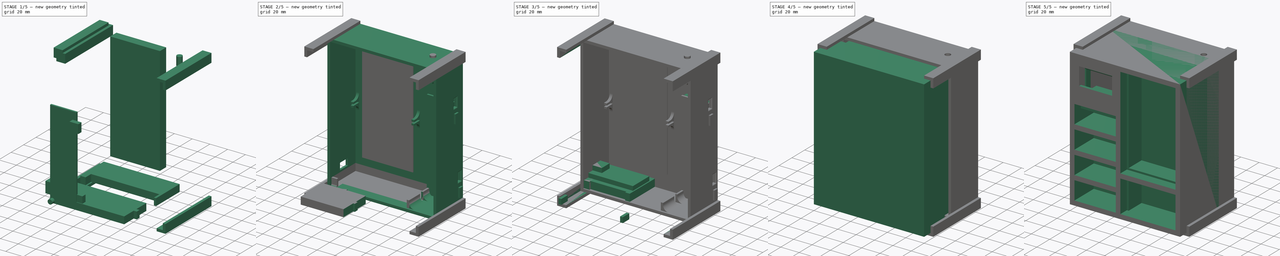
[diagram: build sequence overview — one tinted view per stage of 5, left to right]
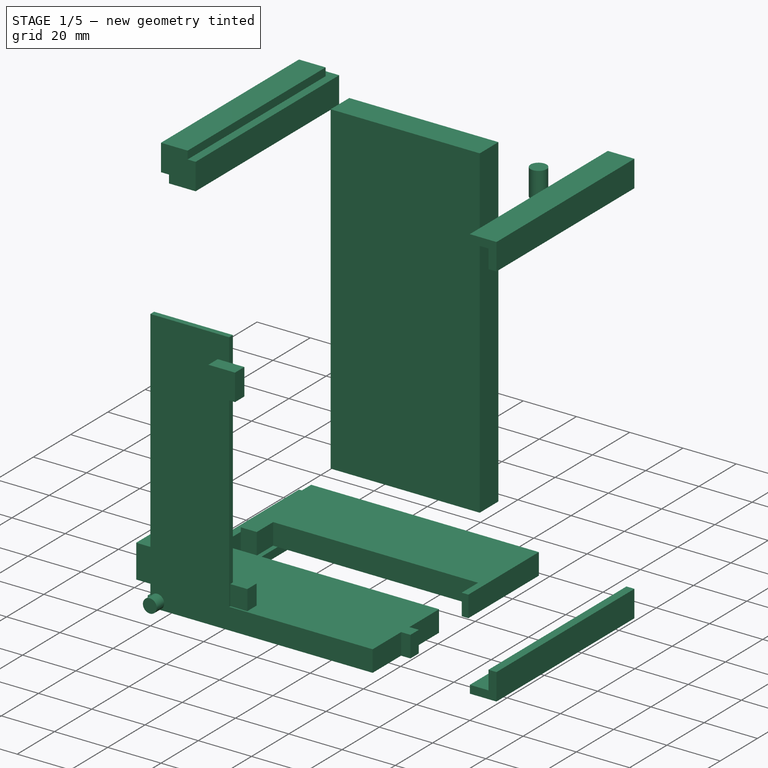
[diagram: stage 1 of 5 — iso view after this stage's code; geometry added in this stage tinted green]
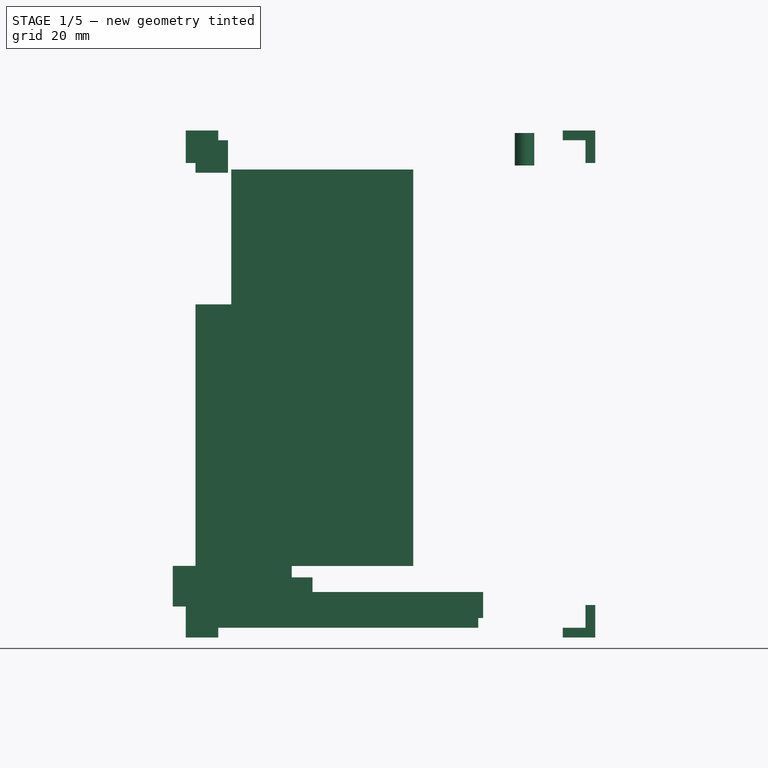
[diagram: stage 1 of 5 — front view after this stage's code; geometry added in this stage tinted green]
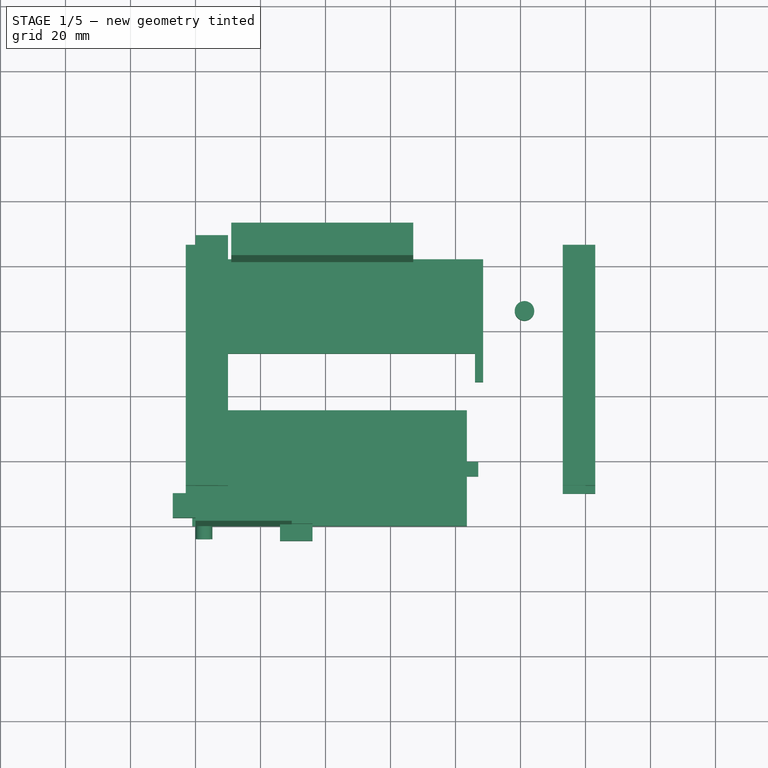
[diagram: stage 1 of 5 — top view after this stage's code; geometry added in this stage tinted green]
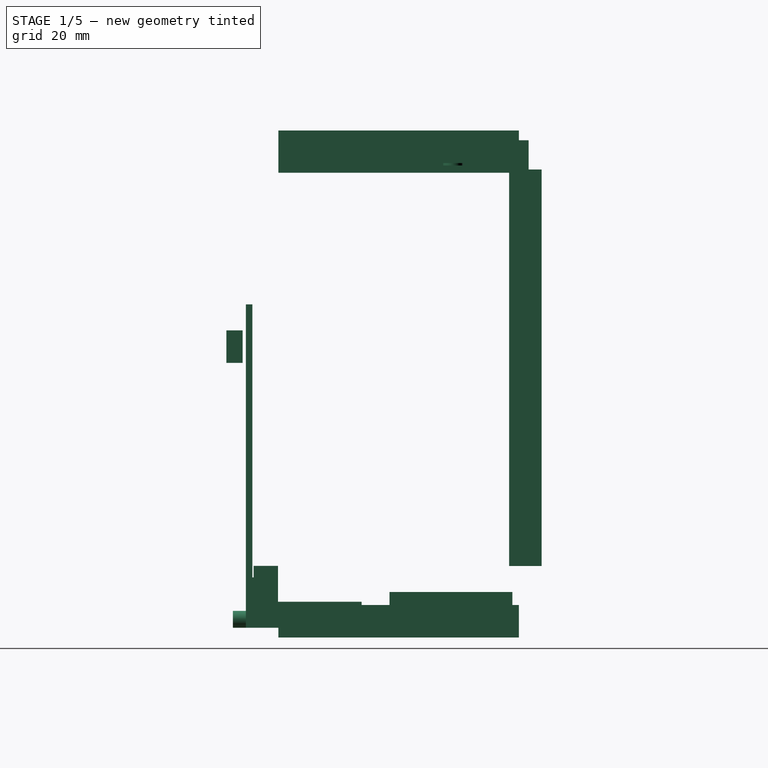
[diagram: stage 1 of 5 — right view after this stage's code; geometry added in this stage tinted green]
FCSTD DOCUMENT  (FreeCAD 0.19R24291 (Git))
Label: weather_closet
License: All rights reserved
LicenseURL: http://en.wikipedia.org/wiki/All_rights_reserved
objects: Part::Box×60, Part::Cut×30, Part::MultiFuse×16, Part::FeaturePython×12, Part::Cylinder×6, Part::Fillet×4, Sketcher::SketchObject×2, Part::Extrusion×2, Part::Chamfer×1
note: 125 computed .brp shape members not serialized (recipe doc carries the construction recipe); baked Part::Feature solids carry a one-line shape summary decoded from their .brp

FEATURE [Part::Box] Box043  label="Cubo024"
  AttacherType = Attacher::AttachEngine3D
  Height = 10
  Length = 10
  Placement = pos=(-3,10,143) rot=(0,0,1;0rad)
  Width = 74
FEATURE [Part::Box] Box045  label="Cubo026"
  AttacherType = Attacher::AttachEngine3D
  Height = 10
  Length = 10
  Placement = pos=(-3,10,143) rot=(0,0,1;0rad)
  Width = 74
FEATURE [Part::Box] Box046  label="micro_usb001"
  AttacherType = Attacher::AttachEngine3D
  Height = 10
  Length = 10
  Placement = pos=(26,0.6,5.5) rot=(0,0,1;0rad)
  Width = 5
FEATURE [Part::Box] Box047  label="Cubo027"
  AttacherType = Attacher::AttachEngine3D
  Height = 5.8
  Length = 3
  Placement = pos=(0,8,0) rot=(0,0,1;0rad)
  Width = 10
FEATURE [Part::Cylinder] Cylinder003  label="Cilindro003"
  Angle = 360
  AttacherType = Attacher::AttachEngine3D
  Height = 4
  Placement = pos=(2.6,0,2.6) rot=(1,0,0;1.5708rad)
  Radius = 2.6
FEATURE [Part::Box] Box048  label="protoboard002"
  AttacherType = Attacher::AttachEngine3D
  Height = 8
  Length = 83.5
  Width = 35.6
FEATURE [Part::Box] Box049  label="Cubo028"
  AttacherType = Attacher::AttachEngine3D
  Height = 10
  Length = 77
  Placement = pos=(9,43,3) rot=(0,0,1;0rad)
  Width = 10
FEATURE [Part::Box] Box050  label="salida_proto002"
  AttacherType = Attacher::AttachEngine3D
  Height = 8
  Length = 4
  Placement = pos=(83,15.25,0) rot=(0,0,1;0rad)
  Width = 4.5
FEATURE [Part::Box] Box051  label="base_pilas001"
  AttacherType = Attacher::AttachEngine3D
  Height = 99.5
  Length = 29.6
  Width = 2
FEATURE [Part::Cylinder] Cylinder004  label="Cilindro004"
  Angle = 360
  AttacherType = Attacher::AttachEngine3D
  Height = 4
  Placement = pos=(2.6,0,2.6) rot=(1,0,0;1.5708rad)
  Radius = 1.2
FEATURE [Part::Box] Box052  label="Cubo029"
  AttacherType = Attacher::AttachEngine3D
  Height = 12.5
  Length = 17
  Placement = pos=(-7,2.4,6.55) rot=(0,0,1;0rad)
  Width = 7.5
FEATURE [Part::Box] Box053  label="on_off001"
  AttacherType = Attacher::AttachEngine3D
  Height = 10
  Length = 10
  Placement = pos=(26,-6,81.5) rot=(0,0,1;0rad)
  Width = 5
FEATURE [Part::Box] Box054  label="Cubo030"
  AttacherType = Attacher::AttachEngine3D
  Height = 10
  Length = 10
  Placement = pos=(0,10,140) rot=(0,0,1;0rad)
  Width = 77
FEATURE [Part::Cylinder] Cylinder005  label="Entrada_switch_on_off"
  Angle = 360
  AttacherType = Attacher::AttachEngine3D
  Height = 10
  Placement = pos=(101.22,63.68,142.21) rot=(0,0,1;0rad)
  Radius = 3
FEATURE [Part::Box] Box055  label="protoboard003"
  AttacherType = Attacher::AttachEngine3D
  Height = 8
  Length = 85.5
  Placement = pos=(3,44.2,3) rot=(0,0,1;0rad)
  Width = 37.8
FEATURE [Part::Cut] Cut030  label="baseProto001"
  Base = -> Box055
  Tool = -> Box049
FEATURE [Part::Box] Box056  label="leds002"
  AttacherType = Attacher::AttachEngine3D
  Height = 1.7
  Length = 72
  Placement = pos=(-1,0,2) rot=(0,0,1;0rad)
  Width = 18
FEATURE [Part::Box] Box057  label="Cubo031"
  AttacherType = Attacher::AttachEngine3D
  Height = 10
  Length = 10
  Placement = pos=(0,10,140) rot=(0,0,1;0rad)
  Width = 77
FEATURE [Part::Cut] Cut029
  Base = -> Box045
  Placement = pos=(-30,-2e-15,150) rot=(0,1,0;1.5708rad)
  Tool = -> Box057
FEATURE [Part::Box] Box058  label="Cubo032"
  AttacherType = Attacher::AttachEngine3D
  Height = 10
  Length = 10
  Placement = pos=(0,10,140) rot=(0,0,1;0rad)
  Width = 77
FEATURE [Part::Box] Box059  label="Cubo033"
  AttacherType = Attacher::AttachEngine3D
  Height = 10
  Length = 10
  Placement = pos=(-3,10,143) rot=(0,0,1;0rad)
  Width = 74
FEATURE [Part::Box] Box060  label="tapa_trasera"
  AttacherType = Attacher::AttachEngine3D
  Height = 122
  Length = 56
  Placement = pos=(11,81,19) rot=(0,0,1;0rad)
  Width = 10
FEATURE [Part::Box] Box061  label="Cubo034"
  AttacherType = Attacher::AttachEngine3D
  Height = 10
  Length = 10
  Placement = pos=(-3,10,143) rot=(0,0,1;0rad)
  Width = 74
FEATURE [Part::Cut] Cut028
  Base = -> Box061
  Placement = pos=(150,0,3.3e-14) rot=(0,-1,0;1.5708rad)
  Tool = -> Box058
FEATURE [Part::Box] Box062  label="Cubo035"
  AttacherType = Attacher::AttachEngine3D
  Height = 10
  Length = 10
  Placement = pos=(0,10,140) rot=(0,0,1;0rad)
  Width = 77
FEATURE [Part::Cut] Cut027
  Base = -> Box059
  Placement = pos=(120,0,150) rot=(0,1,0;3.14159rad)
  Tool = -> Box062
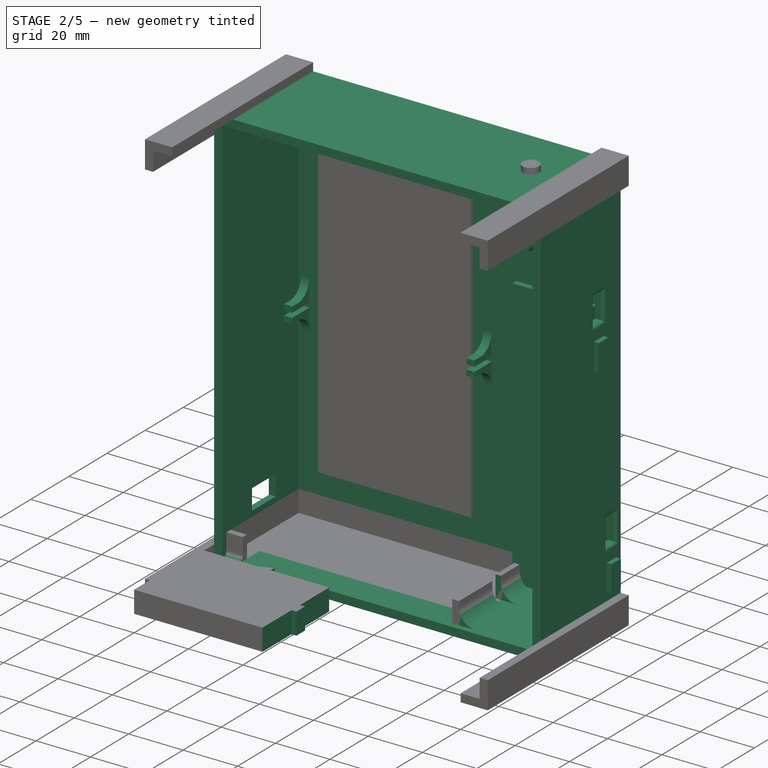
[diagram: stage 2 of 5 — iso view after this stage's code; geometry added in this stage tinted green]
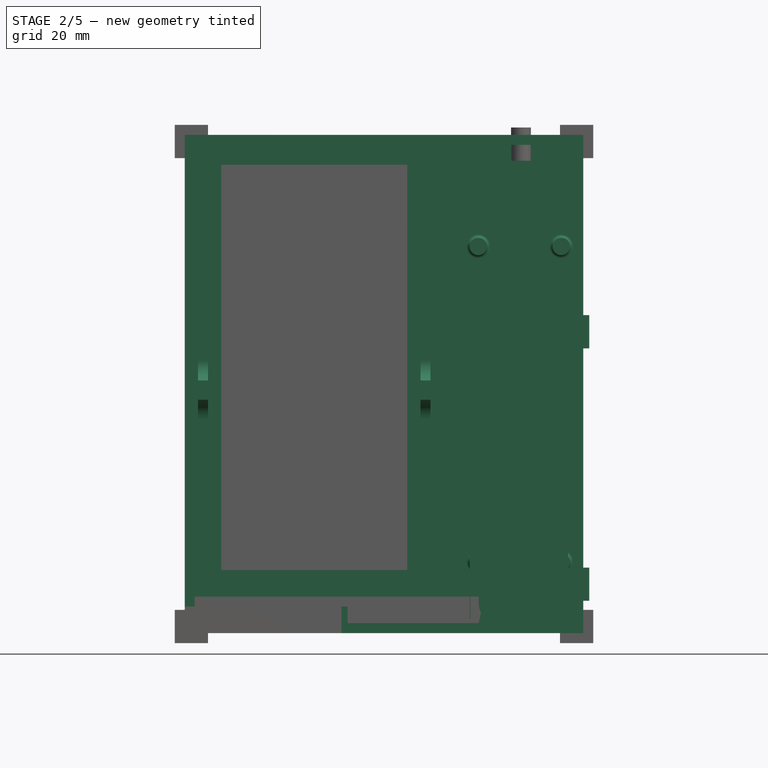
[diagram: stage 2 of 5 — front view after this stage's code; geometry added in this stage tinted green]
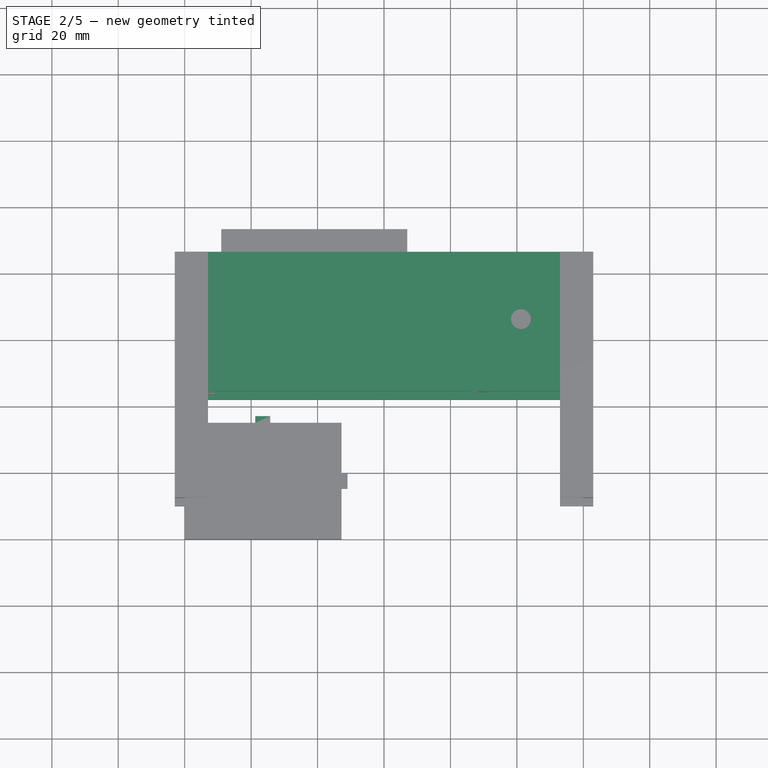
[diagram: stage 2 of 5 — top view after this stage's code; geometry added in this stage tinted green]
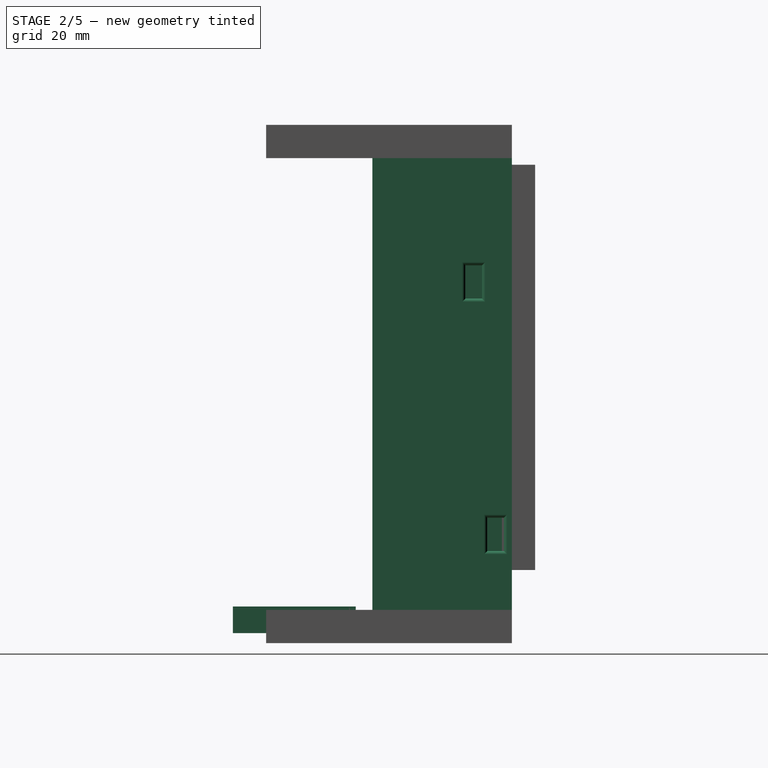
[diagram: stage 2 of 5 — right view after this stage's code; geometry added in this stage tinted green]
FEATURE [Part::Box] Box021  label="protoboard"
  AttacherType = Attacher::AttachEngine3D
  Height = 8
  Length = 47.2
  Width = 35
FEATURE [Part::Box] Box022  label="salida_proto"
  AttacherType = Attacher::AttachEngine3D
  Height = 8
  Length = 2
  Placement = pos=(47,15.25,0) rot=(0,0,1;0rad)
  Width = 4.5
FEATURE [Part::Box] Box023  label="salida_proto001"
  AttacherType = Attacher::AttachEngine3D
  Height = 8
  Length = 4.5
  Placement = pos=(21.25,35,0) rot=(0,0,1;0rad)
  Width = 2
FEATURE [Part::Box] Box027  label="base_pilas"
  AttacherType = Attacher::AttachEngine3D
  Height = 99.5
  Length = 29.6
  Width = 2
FEATURE [Part::Box] Box028  label="micro_usb"
  AttacherType = Attacher::AttachEngine3D
  Height = 10
  Length = 10
  Placement = pos=(26,0.6,5.5) rot=(0,0,1;0rad)
  Width = 5
FEATURE [Part::Box] Box029  label="on_off"
  AttacherType = Attacher::AttachEngine3D
  Height = 10
  Length = 10
  Placement = pos=(26,-6,81.5) rot=(0,0,1;0rad)
  Width = 5
FEATURE [Part::MultiFuse] Fusion008  label="portapilas"
  Placement = pos=(85.8,76,4.23) rot=(0,0,1;0rad)
  Shapes = -> [Box028,Box029,Box027]
FEATURE [Part::Box] Box040  label="Cubo021"
  AttacherType = Attacher::AttachEngine3D
  Height = 122
  Length = 56
  Placement = pos=(11,81,19) rot=(0,0,1;0rad)
  Width = 10
FEATURE [Part::Cylinder] Cylinder002  label="Cilindro002"
  Angle = 360
  AttacherType = Attacher::AttachEngine3D
  Height = 10
  Placement = pos=(101.22,63.68,142.21) rot=(0,0,1;0rad)
  Radius = 3
FEATURE [Part::Box] Box041  label="Cubo022"
  AttacherType = Attacher::AttachEngine3D
  Height = 150
  Length = 120
  Placement = pos=(0,42,0) rot=(0,0,1;0rad)
  Width = 42
FEATURE [Part::Box] Box042  label="Cubo023"
  AttacherType = Attacher::AttachEngine3D
  Height = 144
  Length = 114
  Placement = pos=(3,32,3) rot=(0,0,1;0rad)
  Width = 50
FEATURE [Part::Cut] Cut024
  Base = -> Box041
  Tool = -> Box042
FEATURE [Part::Box] Box044  label="Cubo025"
  AttacherType = Attacher::AttachEngine3D
  Height = 25.5
  Length = 48.5
  Placement = pos=(0,0.4,0) rot=(0,0,1;0rad)
  Width = 4.6
FEATURE [Part::FeaturePython] Array008  label="soporte_leds001"  # Draft array (typed FeaturePython)
  AlwaysSyncPlacement = false
  Angle = 360
  ArrayType = 0
  Axis = (0,0,1)
  Base = -> Box047
  Center = (0,0,0)
  Count = 2
  ExpandArray = false
  Fuse = false
  IntervalAxis = (0,0,0)
  IntervalX = (67,0,0)
  IntervalY = (0,0,0)
  IntervalZ = (0,0,0)
  LinkCopyOnChange = -1
  NumberCircles = 3
  NumberPolar = 5
  NumberX = 2
  NumberY = 1
  NumberZ = 1
  PlacementList = 2 placements: [(0,8,0),(67,8,0)]
  RadialDistance = 50
  ScaleList = (2) [(1,1,1),(1,1,1)]
  Symmetry = 1
  TangentialDistance = 25
FEATURE [Part::Cut] Cut025
  Base = -> Cylinder003
  Placement = pos=(31.1998,82,-20.1714) rot=(0,0,1;0rad)
  Tool = -> Cylinder004
FEATURE [Part::FeaturePython] Array007  label="tornillos_portapilas"  # Draft array (typed FeaturePython)
  AlwaysSyncPlacement = false
  Angle = 360
  ArrayType = 0
  Axis = (0,0,1)
  Base = -> Cut025
  Center = (0,0,0)
  Count = 4
  ExpandArray = false
  Fuse = false
  IntervalAxis = (0,0,0)
  IntervalX = (25,0,0)
  IntervalY = (0,100,0)
  IntervalZ = (0,0,95)
  LinkCopyOnChange = -1
  NumberCircles = 3
  NumberPolar = 5
  NumberX = 2
  NumberY = 1
  NumberZ = 2
  Placement = pos=(54.6,0,39) rot=(0,0,1;0rad)
  PlacementList = 4 placements: [(31.1998,82,-20.1714),(31.1998,82,74.8286),(56.1998,82,-20.1714),(56.1998,82,74.8286)]
  RadialDistance = 50
  ScaleList = (4) [(1,1,1),(1,1,1),(1,1,1),(1,1,1)]
  Symmetry = 1
  TangentialDistance = 25
FEATURE [Part::MultiFuse] Fusion016  label="nodemcu001"
  Placement = pos=(0,30.25,7.6) rot=(1,0,0;1.5708rad)
  Shapes = -> [Box044,Box052]
FEATURE [Part::MultiFuse] Fusion014  label="proto_placa"
  Placement = pos=(3,46.4,3) rot=(0,0,1;0rad)
  Shapes = -> [Box048,Box050,Fusion016]
FEATURE [Part::MultiFuse] Fusion017  label="portapilas001"
  Placement = pos=(85.8,76,19.23) rot=(0,0,1;0rad)
  Shapes = -> [Box046,Box053,Box051]
FEATURE [Part::Cut] Cut026
  Base = -> Box043
  Tool = -> Box054
FEATURE [Part::Cut] Cut023  label="soporte_placa_leds001"
  Base = -> Array008
  Placement = pos=(4,65,70.25) rot=(0,0,1;0rad)
  Tool = -> Box056
FEATURE [Part::MultiFuse] Fusion013
  Shapes = -> [Fusion014,Fusion017,Cylinder005,Box060]
FEATURE [Part::MultiFuse] Fusion015  label="soportes_frontis001"
  Shapes = -> [Cut026,Cut029,Cut028,Cut027]
FEATURE [Part::MultiFuse] Fusion012
  Shapes = -> [Fusion015,Cut024,Cut023,Cut030,Array007]
FEATURE [Part::Cut] Cut022
  Base = -> Fusion012
  Tool = -> Fusion013
FEATURE [Part::Fillet] Fillet003  label="Closet_bottom_generic"
  Base = -> Cut022
  Edges = 23 edges: [Edge39 r=1,Edge40 r=1,Edge41 r=1,Edge42 r=1,Edge70 r=1,Edge71 r=1,Edge72 r=1,Edge73 r=1,Edge74 r=1,Edge75 r=1,Edge76 r=1,Edge77 r=1,Edge132 r=2,Edge137 r=6,Edge141 r=6,Edge186 r=6,Edge187 r=6,Edge194 r=6,Edge195 r=6,Edge199 r=1,Edge200 r=1,Edge201 r=1,Edge202 r=1]
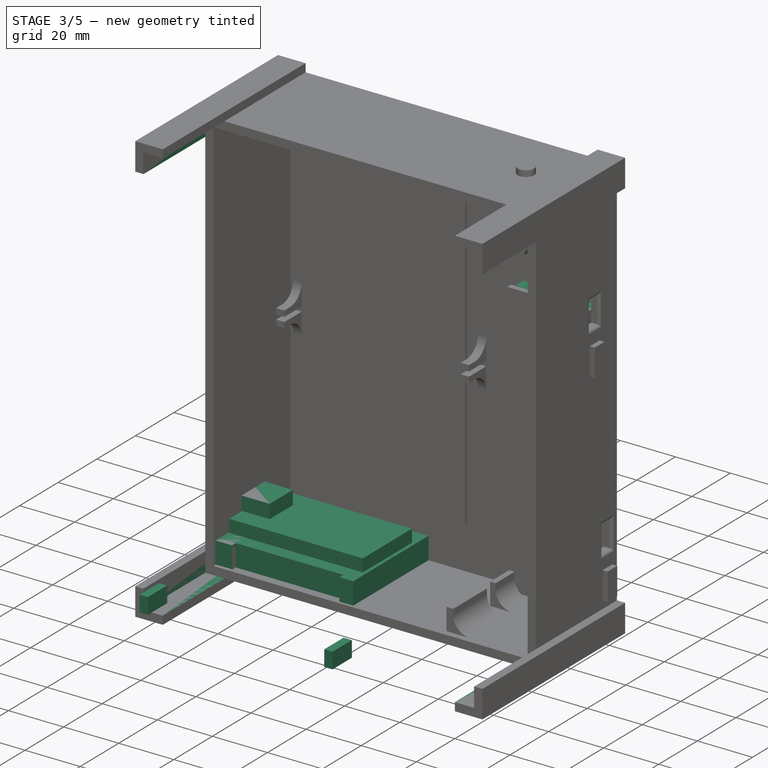
[diagram: stage 3 of 5 — iso view after this stage's code; geometry added in this stage tinted green]
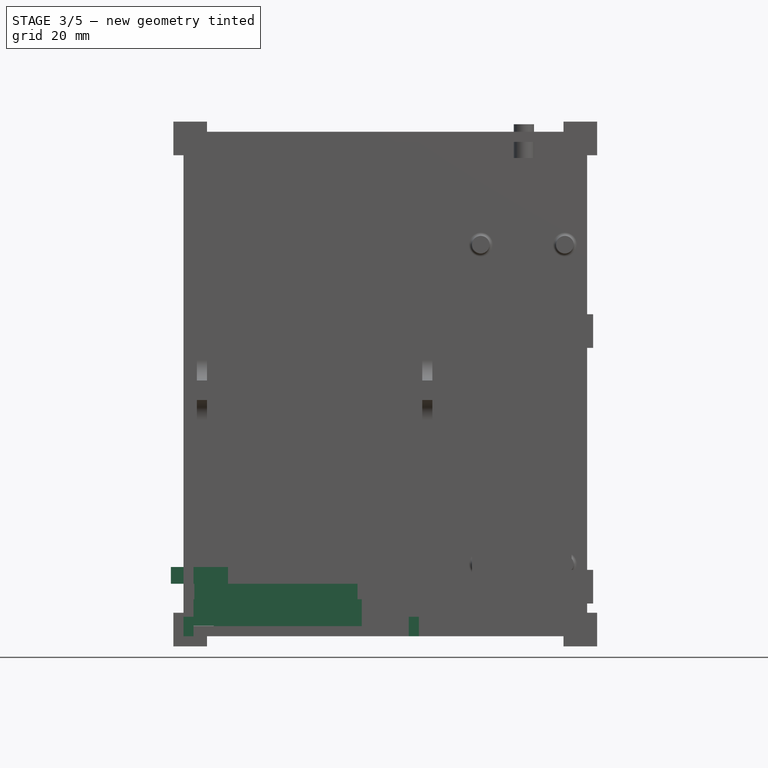
[diagram: stage 3 of 5 — front view after this stage's code; geometry added in this stage tinted green]
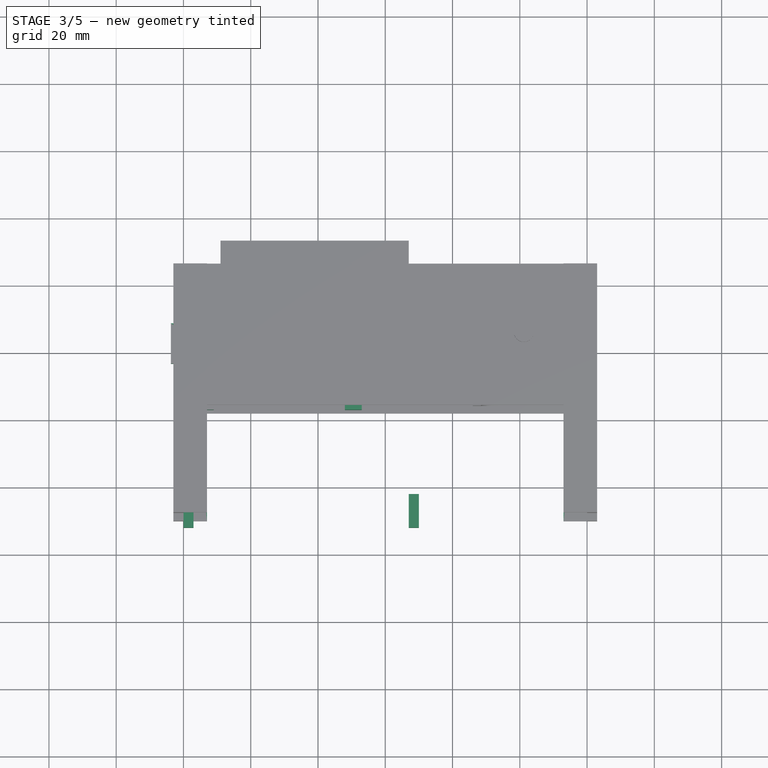
[diagram: stage 3 of 5 — top view after this stage's code; geometry added in this stage tinted green]
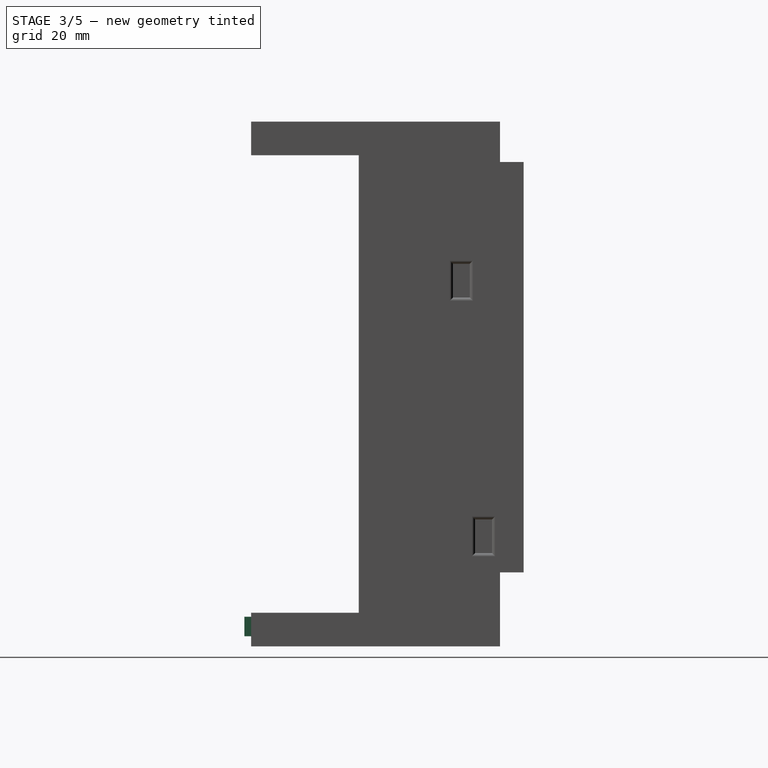
[diagram: stage 3 of 5 — right view after this stage's code; geometry added in this stage tinted green]
FEATURE [Part::Box] Box017  label="Cubo007"
  AttacherType = Attacher::AttachEngine3D
  Height = 10
  Length = 10
  Placement = pos=(-3,10,143) rot=(0,0,1;0rad)
  Width = 74
FEATURE [Part::Box] Box018  label="Cubo008"
  AttacherType = Attacher::AttachEngine3D
  Height = 25.5
  Length = 48.5
  Placement = pos=(0,0.4,0) rot=(0,0,1;0rad)
  Width = 4.6
FEATURE [Part::Box] Box020  label="Cubo010"
  AttacherType = Attacher::AttachEngine3D
  Height = 12
  Length = 17
  Placement = pos=(-7,5,6.75) rot=(0,0,1;0rad)
  Width = 5
FEATURE [Part::MultiFuse] Fusion005  label="nodemcu"
  Placement = pos=(-0.75,30.25,7.6) rot=(1,0,0;1.5708rad)
  Shapes = -> [Box018,Box020]
FEATURE [Part::MultiFuse] Fusion006  label="proto_nodemcu"
  Placement = pos=(4,45,3) rot=(0,0,1;0rad)
  Shapes = -> [Fusion005,Box021,Box023,Box022]
FEATURE [Part::Box] Box024  label="protoboard001"
  AttacherType = Attacher::AttachEngine3D
  Height = 8
  Length = 50
  Placement = pos=(3,43,3) rot=(0,0,1;0rad)
  Width = 39
FEATURE [Part::Box] Box025  label="Cubo011"
  AttacherType = Attacher::AttachEngine3D
  Height = 5.8
  Length = 3
  Placement = pos=(0,8,0) rot=(0,0,1;0rad)
  Width = 10
FEATURE [Part::FeaturePython] Array005  label="soporte_leds"  # Draft array (typed FeaturePython)
  AlwaysSyncPlacement = false
  Angle = 360
  ArrayType = 0
  Axis = (0,0,1)
  Base = -> Box025
  Center = (0,0,0)
  Count = 2
  ExpandArray = false
  Fuse = false
  IntervalAxis = (0,0,0)
  IntervalX = (67,0,0)
  IntervalY = (0,0,0)
  IntervalZ = (0,0,0)
  LinkCopyOnChange = -1
  NumberCircles = 3
  NumberPolar = 5
  NumberX = 2
  NumberY = 1
  NumberZ = 1
  PlacementList = 2 placements: [(0,8,0),(67,8,0)]
  RadialDistance = 50
  ScaleList = (2) [(1,1,1),(1,1,1)]
  Symmetry = 1
  TangentialDistance = 25
FEATURE [Part::Cylinder] Cylinder  label="Cilindro"
  Angle = 360
  AttacherType = Attacher::AttachEngine3D
  Height = 4
  Placement = pos=(2.6,0,2.6) rot=(1,0,0;1.5708rad)
  Radius = 2.6
FEATURE [Part::Cylinder] Cylinder001  label="Cilindro001"
  Angle = 360
  AttacherType = Attacher::AttachEngine3D
  Height = 4
  Placement = pos=(2.6,0,2.6) rot=(1,0,0;1.5708rad)
  Radius = 1.2
FEATURE [Part::Cut] Cut013
  Base = -> Cylinder
  Placement = pos=(31.1998,82,-20.1714) rot=(0,0,1;0rad)
  Tool = -> Cylinder001
FEATURE [Part::FeaturePython] Array006  # Draft array (typed FeaturePython)
  AlwaysSyncPlacement = false
  Angle = 360
  ArrayType = 0
  Axis = (0,0,1)
  Base = -> Cut013
  Center = (0,0,0)
  Count = 4
  ExpandArray = false
  Fuse = false
  IntervalAxis = (0,0,0)
  IntervalX = (25,0,0)
  IntervalY = (0,100,0)
  IntervalZ = (0,0,95)
  LinkCopyOnChange = -1
  NumberCircles = 3
  NumberPolar = 5
  NumberX = 2
  NumberY = 1
  NumberZ = 2
  Placement = pos=(54.6,0,24) rot=(0,0,1;0rad)
  PlacementList = 4 placements: [(31.1998,82,-20.1714),(31.1998,82,74.8286),(56.1998,82,-20.1714),(56.1998,82,74.8286)]
  RadialDistance = 50
  ScaleList = (4) [(1,1,1),(1,1,1),(1,1,1),(1,1,1)]
  Symmetry = 1
  TangentialDistance = 25
FEATURE [Part::Box] Box032  label="Cubo013"
  AttacherType = Attacher::AttachEngine3D
  Height = 10
  Length = 39
  Placement = pos=(9,43,3) rot=(0,0,1;0rad)
  Width = 10
FEATURE [Part::Cut] Cut014  label="baseProto"
  Base = -> Box024
  Tool = -> Box032
FEATURE [Part::Box] Box033  label="Cubo014"
  AttacherType = Attacher::AttachEngine3D
  Height = 10
  Length = 10
  Placement = pos=(0,10,140) rot=(0,0,1;0rad)
  Width = 77
FEATURE [Part::Cut] Cut015
  Base = -> Box017
  Tool = -> Box033
FEATURE [Part::Box] Box034  label="Cubo015"
  AttacherType = Attacher::AttachEngine3D
  Height = 10
  Length = 10
  Placement = pos=(-3,10,143) rot=(0,0,1;0rad)
  Width = 74
FEATURE [Part::Box] Box035  label="Cubo016"
  AttacherType = Attacher::AttachEngine3D
  Height = 10
  Length = 10
  Placement = pos=(0,10,140) rot=(0,0,1;0rad)
  Width = 77
FEATURE [Part::Cut] Cut016
  Base = -> Box034
  Placement = pos=(-30,-2e-15,150) rot=(0,1,0;1.5708rad)
  Tool = -> Box035
FEATURE [Part::Box] Box036  label="Cubo017"
  AttacherType = Attacher::AttachEngine3D
  Height = 10
  Length = 10
  Placement = pos=(-3,10,143) rot=(0,0,1;0rad)
  Width = 74
FEATURE [Part::Box] Box037  label="Cubo018"
  AttacherType = Attacher::AttachEngine3D
  Height = 10
  Length = 10
  Placement = pos=(0,10,140) rot=(0,0,1;0rad)
  Width = 77
FEATURE [Part::Cut] Cut017
  Base = -> Box036
  Placement = pos=(150,0,3.3e-14) rot=(0,-1,0;1.5708rad)
  Tool = -> Box037
FEATURE [Part::Box] Box038  label="Cubo019"
  AttacherType = Attacher::AttachEngine3D
  Height = 10
  Length = 10
  Placement = pos=(-3,10,143) rot=(0,0,1;0rad)
  Width = 74
FEATURE [Part::Box] Box039  label="Cubo020"
  AttacherType = Attacher::AttachEngine3D
  Height = 10
  Length = 10
  Placement = pos=(0,10,140) rot=(0,0,1;0rad)
  Width = 77
FEATURE [Part::Cut] Cut018
  Base = -> Box038
  Placement = pos=(120,0,150) rot=(0,1,0;3.14159rad)
  Tool = -> Box039
FEATURE [Part::MultiFuse] Fusion009  label="soportes_frontis"
  Shapes = -> [Cut015,Cut016,Cut017,Cut018]
FEATURE [Part::MultiFuse] Fusion011
  Shapes = -> [Fusion008,Fusion006]
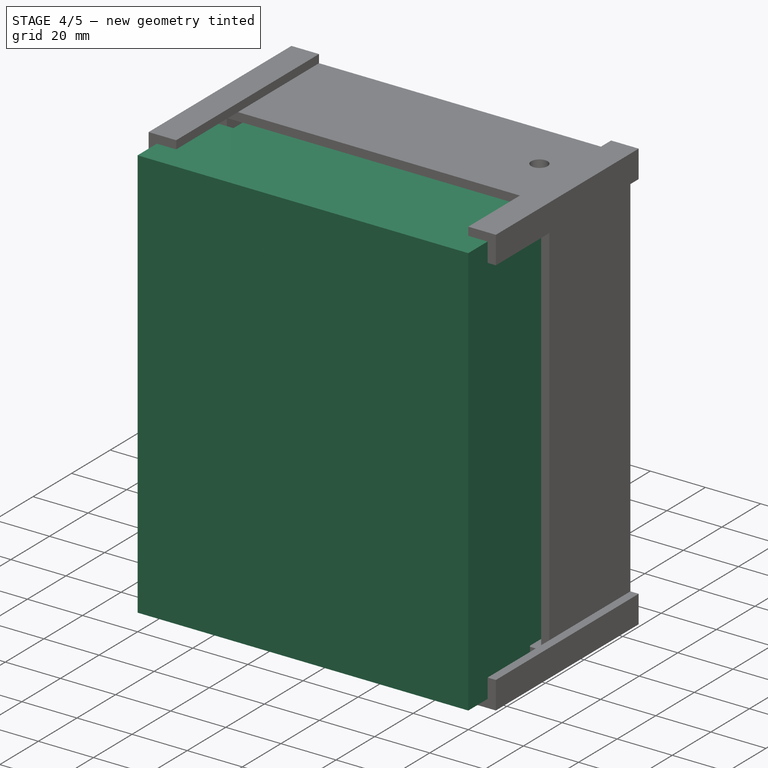
[diagram: stage 4 of 5 — iso view after this stage's code; geometry added in this stage tinted green]
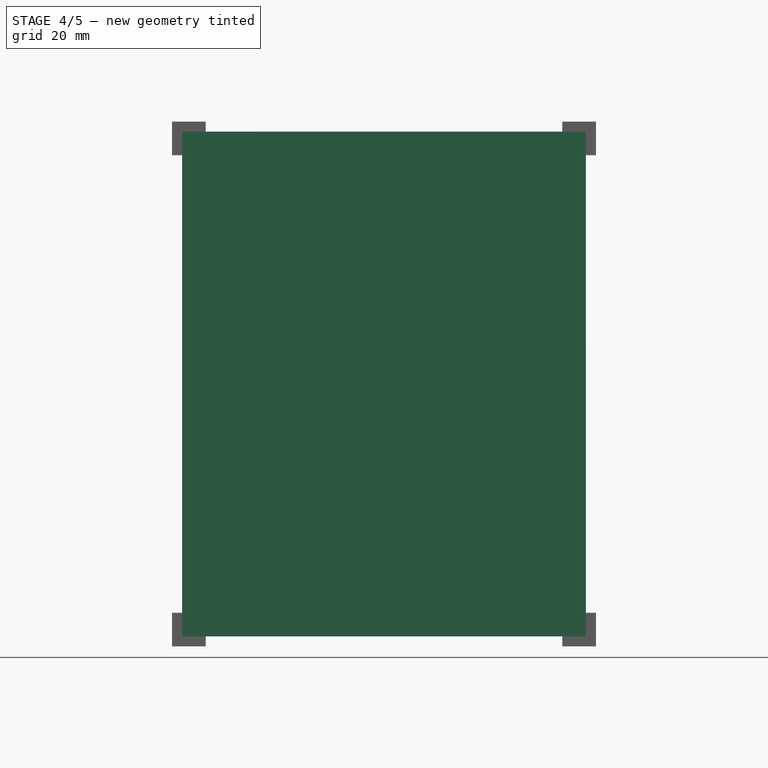
[diagram: stage 4 of 5 — front view after this stage's code; geometry added in this stage tinted green]
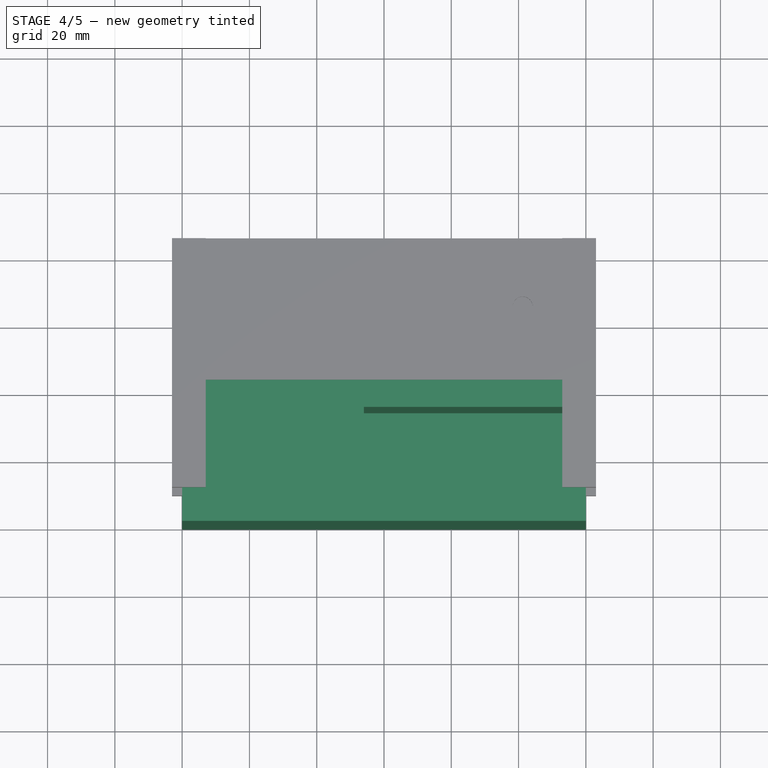
[diagram: stage 4 of 5 — top view after this stage's code; geometry added in this stage tinted green]
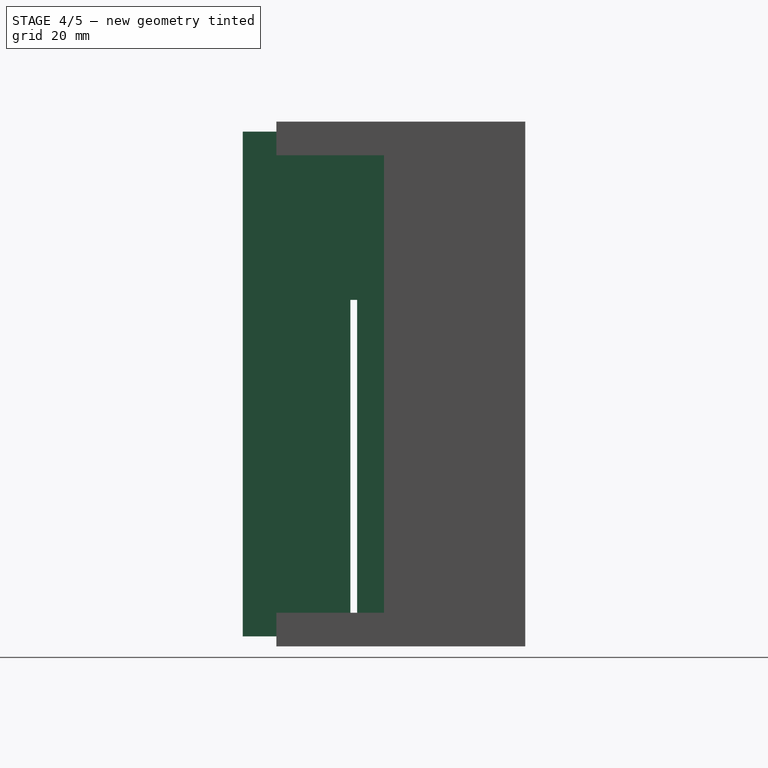
[diagram: stage 4 of 5 — right view after this stage's code; geometry added in this stage tinted green]
FEATURE [Part::Box] Box  label="display_base"
  AttacherType = Attacher::AttachEngine3D
  Height = 3
  Length = 36
  Width = 34
FEATURE [Part::Box] Box001  label="display"
  AttacherType = Attacher::AttachEngine3D
  Height = 3
  Length = 36
  Placement = pos=(1.8e-15,7,3) rot=(0,0,1;0rad)
  Width = 23.5
FEATURE [Part::Box] Box002  label="display_wires"
  AttacherType = Attacher::AttachEngine3D
  Height = 3
  Length = 16
  Placement = pos=(10,0,3) rot=(0,0,1;0rad)
  Width = 34
FEATURE [Part::Box] Box003  label="active_display"
  AttacherType = Attacher::AttachEngine3D
  Height = 2
  Length = 36
  Placement = pos=(1.8e-15,8,6) rot=(0,0,1;0rad)
  Width = 18.5
FEATURE [Part::MultiFuse] Fusion  label="oled_sh1106"
  Placement = pos=(10,8,105) rot=(1,0,0;1.5708rad)
  Shapes = -> [Box,Box001,Box002,Box003]
FEATURE [Part::Box] Box004  label="closet_base"
  AttacherType = Attacher::AttachEngine3D
  Height = 150
  Length = 120
  Width = 32
FEATURE [Part::Box] Box005  label="Cubo"
  AttacherType = Attacher::AttachEngine3D
  Height = 139
  Length = 110
  Placement = pos=(5,34,5) rot=(0,0,1;0rad)
  Width = 26
FEATURE [Part::Box] Box006  label="Cubo001"
  AttacherType = Attacher::AttachEngine3D
  Height = 44
  Length = 49
  Placement = pos=(5,8,100) rot=(0,0,1;0rad)
  Width = 51
FEATURE [Part::FeaturePython] Clone  label="led_head"  # WARN: FeaturePython — macro-defined, semantics opaque (R4)
  Placement = pos=(15,0,21) rot=(1,0,0;3.14159rad)
  Scale = (1,1,1)
FEATURE [Part::FeaturePython] Array  label="leds_repisa"  # Draft array (typed FeaturePython)
  AlwaysSyncPlacement = false
  Angle = 360
  ArrayType = 0
  Axis = (0,0,1)
  Base = -> Clone
  Center = (0,0,0)
  Count = 8
  ExpandArray = false
  Fuse = false
  IntervalAxis = (0,0,0)
  IntervalX = (27,0,0)
  IntervalY = (0,0,0)
  IntervalZ = (0,0,23)
  LinkCopyOnChange = -1
  NumberCircles = 3
  NumberPolar = 5
  NumberX = 2
  NumberY = 1
  NumberZ = 4
  Placement = pos=(0,32,-1) rot=(0,0,1;0rad)
  PlacementList = 8 placements: [(15,0,21),(15,0,44),(15,0,67),(15,0,90),(42,0,21),(42,0,44),(42,0,67),(42,0,90)]
  RadialDistance = 50
  ScaleList = (8) [(1,1,1),(1,1,1),(1,1,1),(1,1,1),(1,1,1),(1,1,1),(1,1,1),(1,1,1)]
  Symmetry = 1
  TangentialDistance = 25
FEATURE [Part::FeaturePython] Clone001  label="led_head001"  # WARN: FeaturePython — macro-defined, semantics opaque (R4)
  Placement = pos=(65,0,35) rot=(1,0,0;3.14159rad)
  Scale = (1,1,1)
FEATURE [Part::FeaturePython] Array001  label="leds_chaquetas"  # Draft array (typed FeaturePython)
  AlwaysSyncPlacement = false
  Angle = 360
  ArrayType = 0
  Axis = (0,0,1)
  Base = -> Clone001
  Center = (0,0,0)
  Count = 6
  ExpandArray = false
  Fuse = false
  IntervalAxis = (0,0,0)
  IntervalX = (20,0,0)
  IntervalY = (0,0,0)
  IntervalZ = (0,0,100)
  LinkCopyOnChange = -1
  NumberCircles = 3
  NumberPolar = 5
  NumberX = 3
  NumberY = 1
  NumberZ = 2
  Placement = pos=(0,32,5) rot=(0,0,1;0rad)
  PlacementList = 6 placements: [(65,0,35),(65,0,135),(85,0,35),(85,0,135),(105,0,35),(105,0,135)]
  RadialDistance = 50
  ScaleList = (6) [(1,1,1),(1,1,1),(1,1,1),(1,1,1),(1,1,1),(1,1,1)]
  Symmetry = 1
  TangentialDistance = 25
FEATURE [Part::MultiFuse] Fusion001
  Shapes = -> [Array,Array001,Fusion]
FEATURE [Part::Box] Box015  label="Cubo005"
  AttacherType = Attacher::AttachEngine3D
  Height = 150
  Length = 120
  Placement = pos=(0,42,0) rot=(0,0,1;0rad)
  Width = 42
FEATURE [Part::Box] Box016  label="Cubo006"
  AttacherType = Attacher::AttachEngine3D
  Height = 144
  Length = 114
  Placement = pos=(3,32,3) rot=(0,0,1;0rad)
  Width = 50
FEATURE [Part::Cut] Cut010
  Base = -> Box015
  Tool = -> Box016
FEATURE [Part::Box] Box026  label="leds"
  AttacherType = Attacher::AttachEngine3D
  Height = 1.7
  Length = 72
  Placement = pos=(-1,0,2) rot=(0,0,1;0rad)
  Width = 18
FEATURE [Part::Cut] Cut012  label="soporte_placa_leds"
  Base = -> Array005
  Placement = pos=(4,65,70.25) rot=(0,0,1;0rad)
  Tool = -> Box026
FEATURE [Part::Box] Box030  label="leds001"
  AttacherType = Attacher::AttachEngine3D
  Height = 1.7
  Length = 72
  Placement = pos=(7,52,70.55) rot=(0,0,1;0rad)
  Width = 30
FEATURE [Part::MultiFuse] Fusion010
  Shapes = -> [Cut010,Fusion009,Cut014,Cut012,Array006]
FEATURE [Part::Cut] Cut019
  Base = -> Fusion010
  Tool = -> Fusion011
FEATURE [Part::Cut] Cut020
  Base = -> Cut019
  Tool = -> Box040
FEATURE [Part::Cut] Cut021
  Base = -> Cut020
  Tool = -> Cylinder002
FEATURE [Part::Fillet] Fillet001
  Base = -> Cut021
  Edges = 4 edges r=7: [Edge157,Edge158,Edge169,Edge172]
FEATURE [Part::Chamfer] Chamfer
  Base = -> Fillet001
  Edges = 2 edges r=5: [Edge57,Edge59]
FEATURE [Part::Fillet] Fillet002  label="closet_bottom_ESP8266"
  Base = -> Chamfer
  Edges = 12 edges r=1.5: [Edge206,Edge209,Edge211,Edge212,Edge214,Edge216,Edge218,Edge220,Edge231,Edge233,Edge235,Edge236]
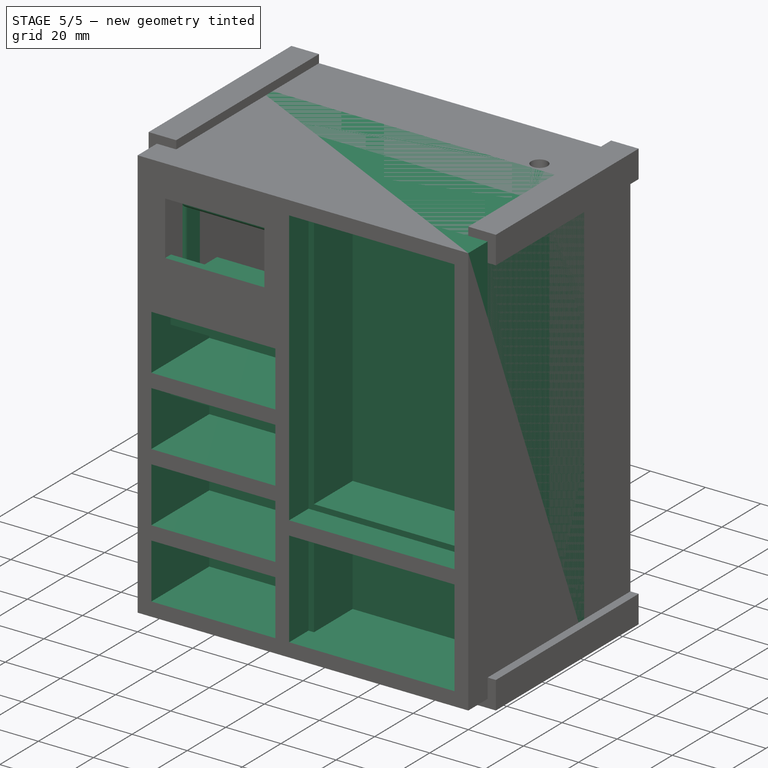
[diagram: stage 5 of 5 — iso view after this stage's code; geometry added in this stage tinted green]
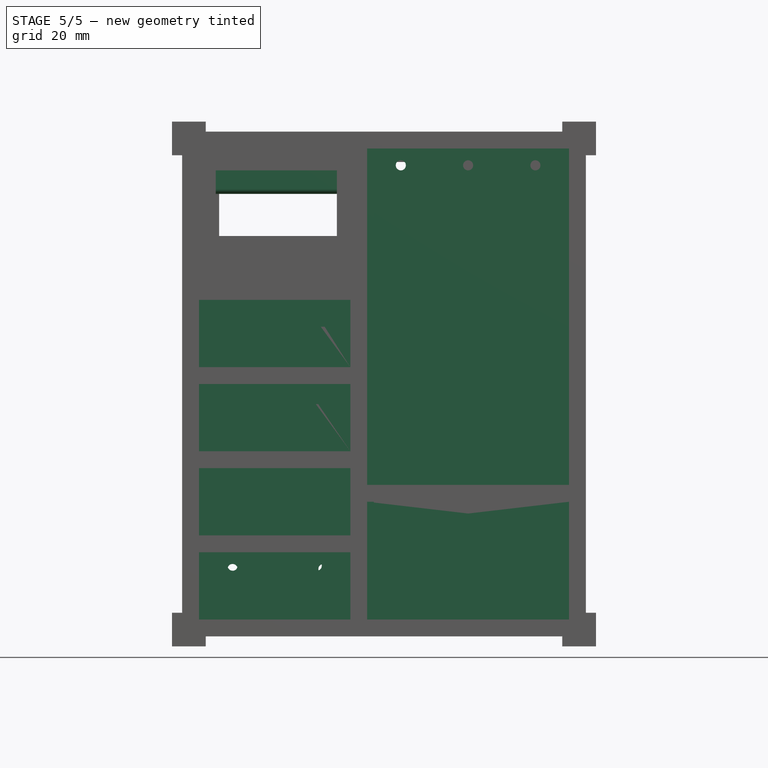
[diagram: stage 5 of 5 — front view after this stage's code; geometry added in this stage tinted green]
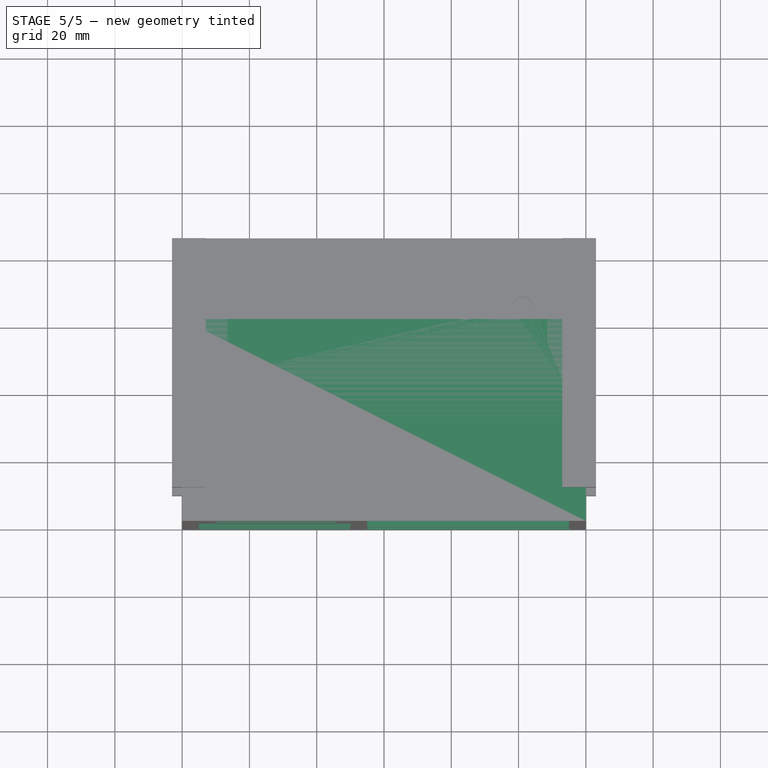
[diagram: stage 5 of 5 — top view after this stage's code; geometry added in this stage tinted green]
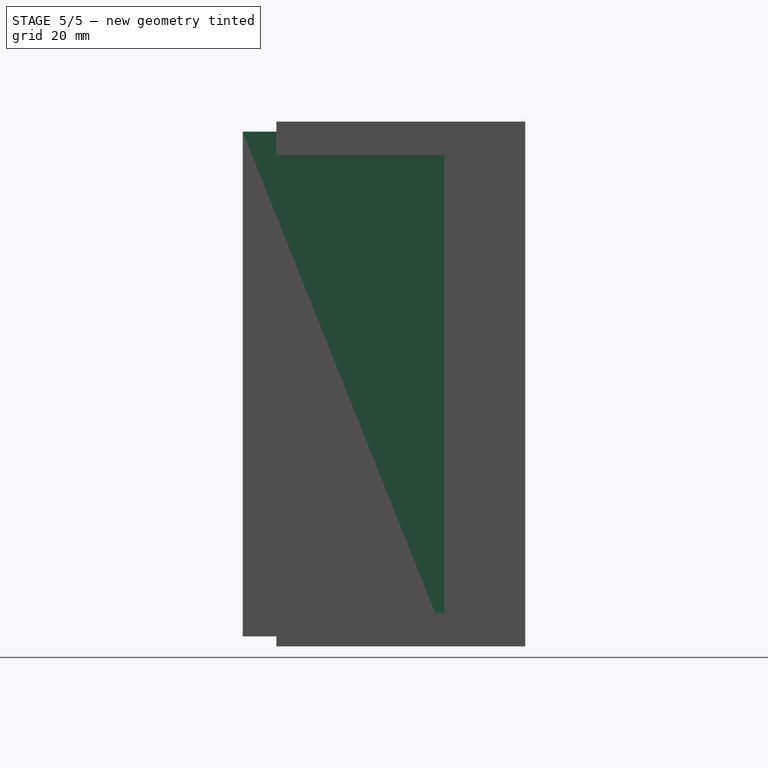
[diagram: stage 5 of 5 — right view after this stage's code; geometry added in this stage tinted green]
FEATURE [Sketcher::SketchObject] Sketch
  ExternalGeometry = -> [Box004]
  FullyConstrained = false
  MapMode = 5
  Placement = pos=(0,0,0) rot=(1,0,0;1.5708rad)
  Support = -> [Box004]
  sketch-geometry (34):
    g0: LineSegment StartX=57 StartY=147 StartZ=0 EndX=117 EndY=147 EndZ=0
    g1: LineSegment StartX=57 StartY=147 StartZ=0 EndX=57 EndY=47 EndZ=0
    g2: LineSegment StartX=57 StartY=47 StartZ=0 EndX=117 EndY=47 EndZ=0
    g3: LineSegment StartX=117 StartY=147 StartZ=0 EndX=117 EndY=47 EndZ=0
    g4: LineSegment StartX=117 StartY=4.6007 StartZ=0 EndX=120 EndY=4.6007 EndZ=0
    g5: LineSegment StartX=141.177 StartY=150 StartZ=0 EndX=141.177 EndY=147 EndZ=0
    g6: LineSegment StartX=57 StartY=44 StartZ=0 EndX=117 EndY=44 EndZ=0
    g7: LineSegment StartX=117 StartY=44 StartZ=0 EndX=117 EndY=3 EndZ=0
    g8: LineSegment StartX=117 StartY=3 StartZ=0 EndX=57 EndY=3 EndZ=0
    g9: LineSegment StartX=57 StartY=3 StartZ=0 EndX=57 EndY=44 EndZ=0
    g10: LineSegment StartX=3 StartY=69 StartZ=0 EndX=54 EndY=69 EndZ=0
    g11: LineSegment StartX=54 StartY=69 StartZ=0 EndX=54 EndY=49 EndZ=0
    g12: LineSegment StartX=54 StartY=49 StartZ=0 EndX=3 EndY=49 EndZ=0
    g13: LineSegment StartX=3 StartY=49 StartZ=0 EndX=3 EndY=69 EndZ=0
    g14: LineSegment StartX=3 StartY=46 StartZ=0 EndX=54 EndY=46 EndZ=0
    g15: LineSegment StartX=54 StartY=46 StartZ=0 EndX=54 EndY=26 EndZ=0
    g16: LineSegment StartX=54 StartY=26 StartZ=0 EndX=3 EndY=26 EndZ=0
    g17: LineSegment StartX=3 StartY=26 StartZ=0 EndX=3 EndY=46 EndZ=0
    g18: LineSegment StartX=3 StartY=23 StartZ=0 EndX=54 EndY=23 EndZ=0
    g19: LineSegment StartX=54 StartY=23 StartZ=0 EndX=54 EndY=3 EndZ=0
    g20: LineSegment StartX=54 StartY=3 StartZ=0 EndX=3 EndY=3 EndZ=0
    g21: LineSegment StartX=3 StartY=3 StartZ=0 EndX=3 EndY=23 EndZ=0
    g22: LineSegment StartX=113.999 StartY=47 StartZ=0 EndX=113.999 EndY=44 EndZ=0
    g23: LineSegment StartX=115.126 StartY=3 StartZ=0 EndX=115.126 EndY=0 EndZ=0
    g24: LineSegment StartX=0 StartY=10.0709 StartZ=0 EndX=3 EndY=10.0709 EndZ=0
    g25: LineSegment StartX=54 StartY=19.4805 StartZ=0 EndX=57 EndY=19.4805 EndZ=0
    g26: LineSegment StartX=4.80128 StartY=0 StartZ=0 EndX=4.80128 EndY=3 EndZ=0
    g27: LineSegment StartX=3 StartY=92 StartZ=0 EndX=54 EndY=92 EndZ=0
    g28: LineSegment StartX=3 StartY=72 StartZ=0 EndX=3 EndY=92 EndZ=0
    g29: LineSegment StartX=54 StartY=72 StartZ=0 EndX=3 EndY=72 EndZ=0
    g30: LineSegment StartX=54 StartY=92 StartZ=0 EndX=54 EndY=72 EndZ=0
    g31: LineSegment StartX=30.8685 StartY=26 StartZ=0 EndX=30.8685 EndY=23 EndZ=0
    g32: LineSegment StartX=30.1127 StartY=49 StartZ=0 EndX=30.1127 EndY=46 EndZ=0
    g33: LineSegment StartX=31.4731 StartY=72 StartZ=0 EndX=31.4731 EndY=69 EndZ=0
  constraints (103):
    c: Horizontal(g0)
    c: Coincident(g1,g0)
    c: Vertical(g1)
    c: Coincident(g2,g1)
    c: Horizontal(g2)
    c: Coincident(g3,g0)
    c: Coincident(g3,g2)
    c: Vertical(g3)
    c: DistanceY(g-3,g-3) = 0
    c: Horizontal(g4)
    c: PointOnObject(g4,g3)
    c: PointOnObject(g4,g-4)
    c: DistanceX(g4,g4) = 3
    c: PointOnObject(g5,g-3)
    c: PointOnObject(g5,g0)
    c: Vertical(g5)
    c: DistanceY(g5,g5) = 3
    c: DistanceY(g3,g3) = 100
    c: DistanceX(g2,g2) = 60
    c: Coincident(g6,g7)
    c: Coincident(g7,g8)
    c: Coincident(g8,g9)
    c: Coincident(g9,g6)
    c: Horizontal(g6)
    c: Horizontal(g8)
    c: Vertical(g7)
    c: Vertical(g9)
    c: Coincident(g10,g11)
    c: Coincident(g11,g12)
    c: Coincident(g12,g13)
    c: Coincident(g13,g10)
    c: Horizontal(g10)
    c: Horizontal(g12)
    c: Vertical(g11)
    c: Vertical(g13)
    c: Coincident(g14,g15)
    c: Coincident(g15,g16)
    c: Coincident(g16,g17)
    c: Coincident(g17,g14)
    c: Horizontal(g14)
    c: Horizontal(g16)
    c: Vertical(g15)
    c: Vertical(g17)
    c: Coincident(g18,g19)
    c: Coincident(g19,g20)
    c: Coincident(g20,g21)
    c: Coincident(g21,g18)
    c: Horizontal(g18)
    c: Horizontal(g20)
    c: Vertical(g19)
    c: Vertical(g21)
    c: PointOnObject(g4,g7)
    c: DistanceX(g6,g6) = 60
    c: PointOnObject(g22,g2)
    c: PointOnObject(g22,g6)
    c: Vertical(g22)
    c: DistanceY(g22,g22) = 3
    c: PointOnObject(g23,g8)
    c: PointOnObject(g23,g-6)
    c: Vertical(g23)
    c: PointOnObject(g24,g-5)
    c: PointOnObject(g24,g21)
    c: Horizontal(g24)
    c: PointOnObject(g24,g17)
    c: PointOnObject(g24,g13)
    c: DistanceX(g24,g24) = 3
    c: PointOnObject(g25,g19)
    c: PointOnObject(g25,g9)
    c: Horizontal(g25)
    c: PointOnObject(g25,g15)
    c: PointOnObject(g25,g11)
    c: DistanceX(g25,g25) = 3
    c: PointOnObject(g26,g-6)
    c: PointOnObject(g26,g20)
    c: Vertical(g26)
    c: DistanceY(g26,g26) = 3
    c: DistanceY(g21,g21) = 20
    c: DistanceY(g15,g15) = 20
    c: DistanceY(g11,g11) = 20
    c: Coincident(g27,g30)
    c: Coincident(g30,g29)
    c: Coincident(g29,g28)
    c: Coincident(g28,g27)
    c: Horizontal(g27)
    c: Horizontal(g29)
    c: Vertical(g30)
    c: Vertical(g28)
    c: Equal(g11,g30) = 20
    c: PointOnObject(g24,g28)
    c: PointOnObject(g25,g30)
    c: PointOnObject(g31,g16)
    c: PointOnObject(g31,g18)
    c: Vertical(g31)
    c: PointOnObject(g32,g12)
    c: PointOnObject(g32,g14)
    c: Vertical(g32)
    c: PointOnObject(g33,g29)
    c: PointOnObject(g33,g10)
    c: Vertical(g33)
    c: DistanceY(g31,g31) = 3
    c: DistanceY(g32,g32) = 3
    c: DistanceY(g33,g33) = 3
    c: PointOnObject(g26,g8)
FEATURE [Part::Extrusion] Extrude
  Base = -> Sketch
  Dir = (0,-1,2e-16)
  DirMode = 2
  FaceMakerClass = Part::FaceMakerBullseye
  LengthFwd = -30
  LengthRev = 0
  Solid = true
  Symmetric = false
FEATURE [Part::Cut] Cut  label="Closet"
  Base = -> Box004
  Tool = -> Extrude
FEATURE [Part::Cut] Cut001
  Base = -> Cut
  Tool = -> Box005
FEATURE [Part::Cut] Cut002
  Base = -> Cut001
  Tool = -> Box006
FEATURE [Part::Cut] Cut003
  Base = -> Cut002
  Tool = -> Fusion
FEATURE [Part::Cut] Cut004  label="Closet_led_frontis"
  Base = -> Cut003
  Tool = -> Fusion001
FEATURE [Part::Box] Box008  label="display_base001"
  AttacherType = Attacher::AttachEngine3D
  Height = 3
  Length = 36
  Width = 34
FEATURE [Part::Box] Box009  label="display001"
  AttacherType = Attacher::AttachEngine3D
  Height = 3
  Length = 36
  Placement = pos=(1.8e-15,7,3) rot=(0,0,1;0rad)
  Width = 23.5
FEATURE [Part::Box] Box010  label="display_wires001"
  AttacherType = Attacher::AttachEngine3D
  Height = 3
  Length = 16
  Placement = pos=(10,0,3) rot=(0,0,1;0rad)
  Width = 34
FEATURE [Part::FeaturePython] Clone002  label="led_head002"  # WARN: FeaturePython — macro-defined, semantics opaque (R4)
  Placement = pos=(65,0,35) rot=(1,0,0;3.14159rad)
  Scale = (1,1,1)
FEATURE [Part::FeaturePython] Clone003  label="led_head003"  # WARN: FeaturePython — macro-defined, semantics opaque (R4)
  Placement = pos=(15,0,21) rot=(1,0,0;3.14159rad)
  Scale = (1,1,1)
FEATURE [Part::FeaturePython] Array002  label="leds_repisa001"  # Draft array (typed FeaturePython)
  AlwaysSyncPlacement = false
  Angle = 360
  ArrayType = 0
  Axis = (0,0,1)
  Base = -> Clone003
  Center = (0,0,0)
  Count = 8
  ExpandArray = false
  Fuse = false
  IntervalAxis = (0,0,0)
  IntervalX = (25,0,0)
  IntervalY = (0,0,0)
  IntervalZ = (0,0,25)
  LinkCopyOnChange = -1
  NumberCircles = 3
  NumberPolar = 5
  NumberX = 2
  NumberY = 1
  NumberZ = 4
  Placement = pos=(0,34,0) rot=(0,0,1;0rad)
  PlacementList = 8 placements: [(15,0,21),(15,0,46),(15,0,71),(15,0,96),(40,0,21),(40,0,46),(40,0,71),(40,0,96)]
  RadialDistance = 50
  ScaleList = (8) [(1,1,1),(1,1,1),(1,1,1),(1,1,1),(1,1,1),(1,1,1),(1,1,1),(1,1,1)]
  Symmetry = 1
  TangentialDistance = 25
FEATURE [Part::FeaturePython] Array003  label="leds_chaquetas001"  # Draft array (typed FeaturePython)
  AlwaysSyncPlacement = false
  Angle = 360
  ArrayType = 0
  Axis = (0,0,1)
  Base = -> Clone002
  Center = (0,0,0)
  Count = 6
  ExpandArray = false
  Fuse = false
  IntervalAxis = (0,0,0)
  IntervalX = (20,0,0)
  IntervalY = (0,0,0)
  IntervalZ = (0,0,105)
  LinkCopyOnChange = -1
  NumberCircles = 3
  NumberPolar = 5
  NumberX = 3
  NumberY = 1
  NumberZ = 2
  Placement = pos=(0,34,0) rot=(0,0,1;0rad)
  PlacementList = 6 placements: [(65,0,35),(65,0,140),(85,0,35),(85,0,140),(105,0,35),(105,0,140)]
  RadialDistance = 50
  ScaleList = (6) [(1,1,1),(1,1,1),(1,1,1),(1,1,1),(1,1,1),(1,1,1)]
  Symmetry = 1
  TangentialDistance = 25
FEATURE [Part::MultiFuse] Fusion003
  Shapes = -> [Array002,Array003]
FEATURE [Part::Box] Box011  label="active_display001"
  AttacherType = Attacher::AttachEngine3D
  Height = 3
  Length = 36
  Placement = pos=(1.8e-15,11,6) rot=(0,0,1;0rad)
  Width = 19.5
FEATURE [Part::MultiFuse] Fusion002  label="oled_sh1107"
  Placement = pos=(10,9,108) rot=(1,0,0;1.5708rad)
  Shapes = -> [Box008,Box009,Box010,Box011]
FEATURE [Part::Box] Box012  label="Cubo003"
  AttacherType = Attacher::AttachEngine3D
  Height = 39
  Length = 46
  Placement = pos=(5,9,105) rot=(0,0,1;0rad)
  Width = 51
FEATURE [Part::Box] Box013  label="Cubo004"
  AttacherType = Attacher::AttachEngine3D
  Height = 139
  Length = 110
  Placement = pos=(5,34,5) rot=(0,0,1;0rad)
  Width = 26
FEATURE [Part::Box] Box014  label="closet_base001"
  AttacherType = Attacher::AttachEngine3D
  Height = 150
  Length = 120
  Width = 60
FEATURE [Sketcher::SketchObject] Sketch004
  ExternalGeometry = -> [Box014]
  FullyConstrained = false
  MapMode = 5
  Placement = pos=(0,0,0) rot=(1,0,0;1.5708rad)
  Support = -> [Box014]
  sketch-geometry (34):
    g0: LineSegment StartX=55 StartY=145 StartZ=0 EndX=115 EndY=145 EndZ=0
    g1: LineSegment StartX=55 StartY=145 StartZ=0 EndX=55 EndY=45 EndZ=0
    g2: LineSegment StartX=55 StartY=45 StartZ=0 EndX=115 EndY=45 EndZ=0
    g3: LineSegment StartX=115 StartY=145 StartZ=0 EndX=115 EndY=45 EndZ=0
    g4: LineSegment StartX=115 StartY=4.6007 StartZ=0 EndX=120 EndY=4.6007 EndZ=0
    g5: LineSegment StartX=141.177 StartY=150 StartZ=0 EndX=141.177 EndY=145 EndZ=0
    g6: LineSegment StartX=55 StartY=40 StartZ=0 EndX=115 EndY=40 EndZ=0
    g7: LineSegment StartX=115 StartY=40 StartZ=0 EndX=115 EndY=5 EndZ=0
    g8: LineSegment StartX=115 StartY=5 StartZ=0 EndX=55 EndY=5 EndZ=0
    g9: LineSegment StartX=55 StartY=5 StartZ=0 EndX=55 EndY=40 EndZ=0
    g10: LineSegment StartX=5 StartY=75 StartZ=0 EndX=50 EndY=75 EndZ=0
    g11: LineSegment StartX=50 StartY=75 StartZ=0 EndX=50 EndY=55 EndZ=0
    g12: LineSegment StartX=50 StartY=55 StartZ=0 EndX=5 EndY=55 EndZ=0
    g13: LineSegment StartX=5 StartY=55 StartZ=0 EndX=5 EndY=75 EndZ=0
    g14: LineSegment StartX=5 StartY=50 StartZ=0 EndX=50 EndY=50 EndZ=0
    g15: LineSegment StartX=50 StartY=50 StartZ=0 EndX=50 EndY=30 EndZ=0
    g16: LineSegment StartX=50 StartY=30 StartZ=0 EndX=5 EndY=30 EndZ=0
    g17: LineSegment StartX=5 StartY=30 StartZ=0 EndX=5 EndY=50 EndZ=0
    g18: LineSegment StartX=5 StartY=25 StartZ=0 EndX=50 EndY=25 EndZ=0
    g19: LineSegment StartX=50 StartY=25 StartZ=0 EndX=50 EndY=5 EndZ=0
    g20: LineSegment StartX=50 StartY=5 StartZ=0 EndX=5 EndY=5 EndZ=0
    g21: LineSegment StartX=5 StartY=5 StartZ=0 EndX=5 EndY=25 EndZ=0
    g22: LineSegment StartX=113.999 StartY=45 StartZ=0 EndX=113.999 EndY=40 EndZ=0
    g23: LineSegment StartX=115.126 StartY=5 StartZ=0 EndX=115.126 EndY=0 EndZ=0
    g24: LineSegment StartX=0 StartY=10.0709 StartZ=0 EndX=5 EndY=10.0709 EndZ=0
    g25: LineSegment StartX=50 StartY=19.4805 StartZ=0 EndX=55 EndY=19.4805 EndZ=0
    g26: LineSegment StartX=4.80128 StartY=0 StartZ=0 EndX=4.80128 EndY=5 EndZ=0
    g27: LineSegment StartX=5 StartY=100 StartZ=0 EndX=50 EndY=100 EndZ=0
    g28: LineSegment StartX=5 StartY=80 StartZ=0 EndX=5 EndY=100 EndZ=0
    g29: LineSegment StartX=50 StartY=80 StartZ=0 EndX=5 EndY=80 EndZ=0
    g30: LineSegment StartX=50 StartY=100 StartZ=0 EndX=50 EndY=80 EndZ=0
    g31: LineSegment StartX=30.8685 StartY=30 StartZ=0 EndX=30.8685 EndY=25 EndZ=0
    g32: LineSegment StartX=30.1127 StartY=55 StartZ=0 EndX=30.1127 EndY=50 EndZ=0
    g33: LineSegment StartX=31.4731 StartY=80 StartZ=0 EndX=31.4731 EndY=75 EndZ=0
  constraints (103):
    c: Horizontal(g0)
    c: Coincident(g1,g0)
    c: Vertical(g1)
    c: Coincident(g2,g1)
    c: Horizontal(g2)
    c: Coincident(g3,g0)
    c: Coincident(g3,g2)
    c: Vertical(g3)
    c: DistanceY(g-3,g-3) = 0
    c: Horizontal(g4)
    c: PointOnObject(g4,g3)
    c: PointOnObject(g4,g-4)
    c: DistanceX(g4,g4) = 5
    c: PointOnObject(g5,g-3)
    c: PointOnObject(g5,g0)
    c: Vertical(g5)
    c: DistanceY(g5,g5) = 5
    c: DistanceY(g3,g3) = 100
    c: DistanceX(g2,g2) = 60
    c: Coincident(g6,g7)
    c: Coincident(g7,g8)
    c: Coincident(g8,g9)
    c: Coincident(g9,g6)
    c: Horizontal(g6)
    c: Horizontal(g8)
    c: Vertical(g7)
    c: Vertical(g9)
    c: Coincident(g10,g11)
    c: Coincident(g11,g12)
    c: Coincident(g12,g13)
    c: Coincident(g13,g10)
    c: Horizontal(g10)
    c: Horizontal(g12)
    c: Vertical(g11)
    c: Vertical(g13)
    c: Coincident(g14,g15)
    c: Coincident(g15,g16)
    c: Coincident(g16,g17)
    c: Coincident(g17,g14)
    c: Horizontal(g14)
    c: Horizontal(g16)
    c: Vertical(g15)
    c: Vertical(g17)
    c: Coincident(g18,g19)
    c: Coincident(g19,g20)
    c: Coincident(g20,g21)
    c: Coincident(g21,g18)
    c: Horizontal(g18)
    c: Horizontal(g20)
    c: Vertical(g19)
    c: Vertical(g21)
    c: PointOnObject(g4,g7)
    c: DistanceX(g6,g6) = 60
    c: PointOnObject(g22,g2)
    c: PointOnObject(g22,g6)
    c: Vertical(g22)
    c: DistanceY(g22,g22) = 5
    c: PointOnObject(g23,g8)
    c: PointOnObject(g23,g-6)
    c: Vertical(g23)
    c: DistanceY(g23,g23) = 5
    c: PointOnObject(g24,g-5)
    c: PointOnObject(g24,g21)
    c: Horizontal(g24)
    c: PointOnObject(g24,g17)
    c: PointOnObject(g24,g13)
    c: DistanceX(g24,g24) = 5
    c: PointOnObject(g25,g19)
    c: PointOnObject(g25,g9)
    c: Horizontal(g25)
    c: PointOnObject(g25,g15)
    c: PointOnObject(g25,g11)
    c: DistanceX(g25,g25) = 5
    c: PointOnObject(g26,g-6)
    c: PointOnObject(g26,g20)
    c: Vertical(g26)
    c: DistanceY(g26,g26) = 5
    c: DistanceY(g21,g21) = 20
    c: DistanceY(g15,g15) = 20
    c: DistanceY(g11,g11) = 20
    c: Coincident(g27,g30)
    c: Coincident(g30,g29)
    c: Coincident(g29,g28)
    c: Coincident(g28,g27)
    c: Horizontal(g27)
    c: Horizontal(g29)
    c: Vertical(g30)
    c: Vertical(g28)
    c: Equal(g11,g30) = 20
    c: PointOnObject(g24,g28)
    c: PointOnObject(g25,g30)
    c: PointOnObject(g31,g16)
    c: PointOnObject(g31,g18)
    c: Vertical(g31)
    c: PointOnObject(g32,g12)
    c: PointOnObject(g32,g14)
    c: Vertical(g32)
    c: PointOnObject(g33,g29)
    c: PointOnObject(g33,g10)
    c: Vertical(g33)
    c: DistanceY(g31,g31) = 5
    c: DistanceY(g32,g32) = 5
    c: DistanceY(g33,g33) = 5
FEATURE [Part::Extrusion] Extrude001
  Base = -> Sketch004
  Dir = (0,-1,2e-16)
  DirMode = 2
  FaceMakerClass = Part::FaceMakerBullseye
  LengthFwd = -30
  LengthRev = 0
  Solid = true
  Symmetric = false
FEATURE [Part::Cut] Cut006  label="Closet001"
  Base = -> Box014
  Tool = -> Extrude001
FEATURE [Part::Cut] Cut009
  Base = -> Cut006
  Tool = -> Box013
FEATURE [Part::Cut] Cut007
  Base = -> Cut009
  Tool = -> Box012
FEATURE [Part::Cut] Cut008
  Base = -> Cut007
  Tool = -> Fusion002
FEATURE [Part::Cut] Cut005  label="Closet_led"
  Base = -> Cut008
  Tool = -> Fusion003
FEATURE [Part::Fillet] Fillet  label="Frontis_closet oled"
  Base = -> Cut004
  Edges = 4 edges r=1.5: [Edge24,Edge25,Edge26,Edge27]
  Placement = pos=(0,10,0) rot=(0,0,1;0rad)
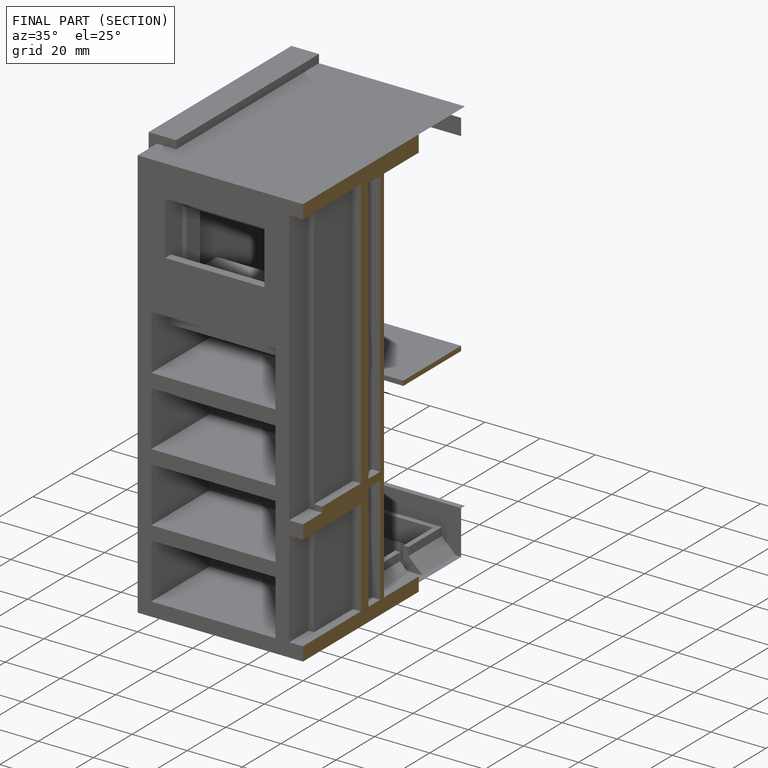
[diagram: finished part — half-section view (interior)]
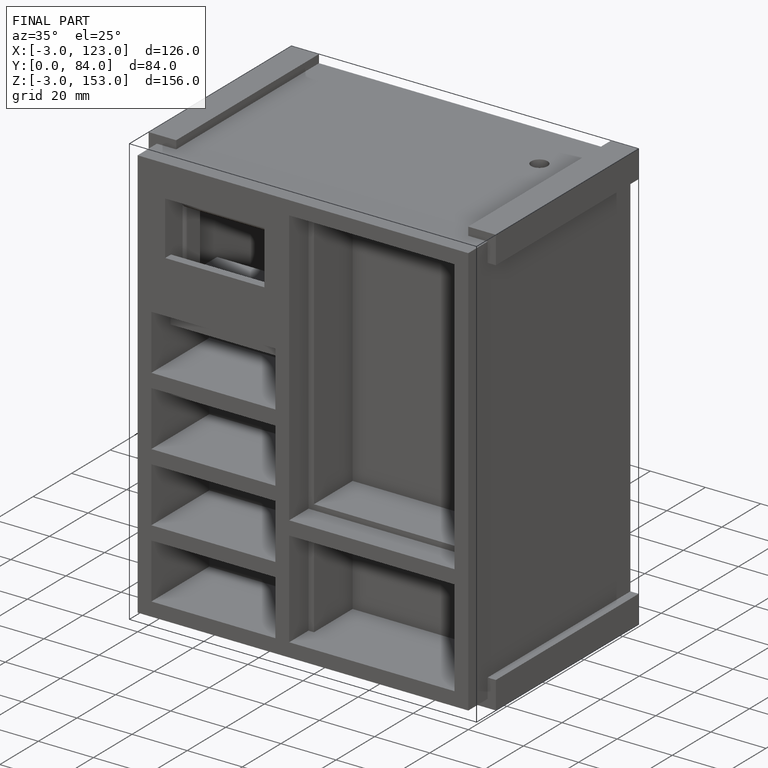
[diagram: finished part — iso view with bounding-box wireframe]
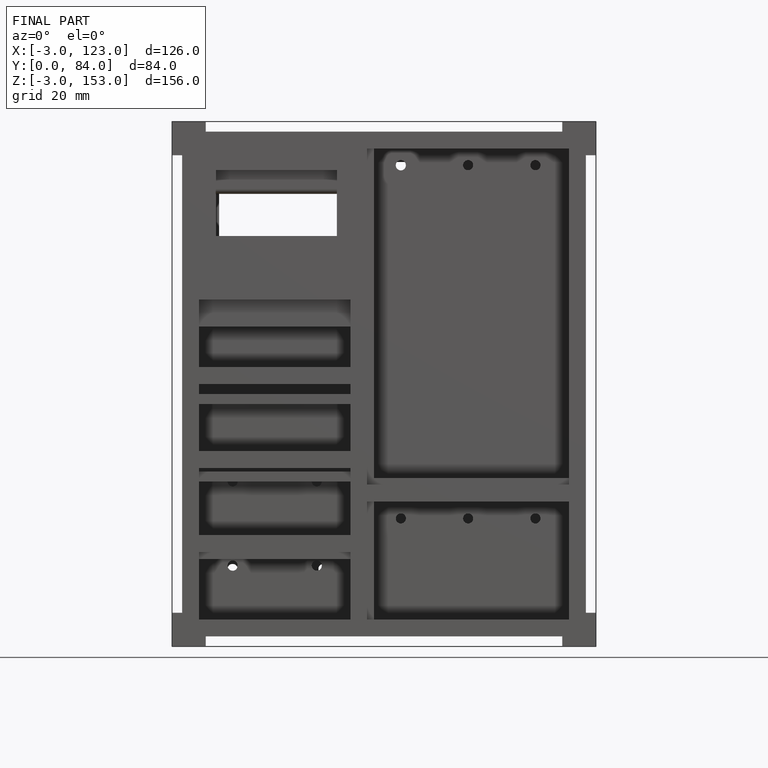
[diagram: finished part — front view with bounding-box wireframe]
